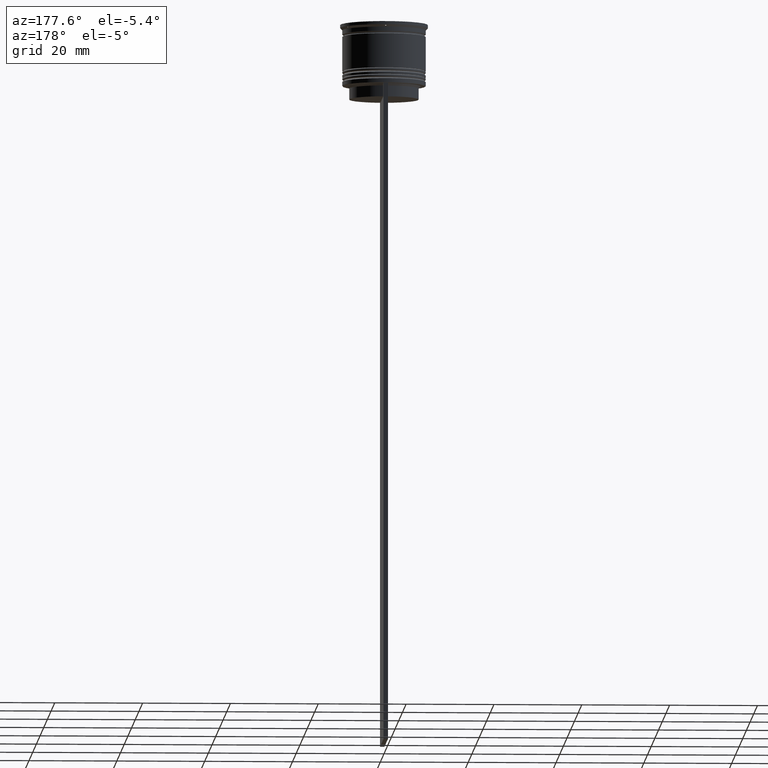
[diagram: clean part render]
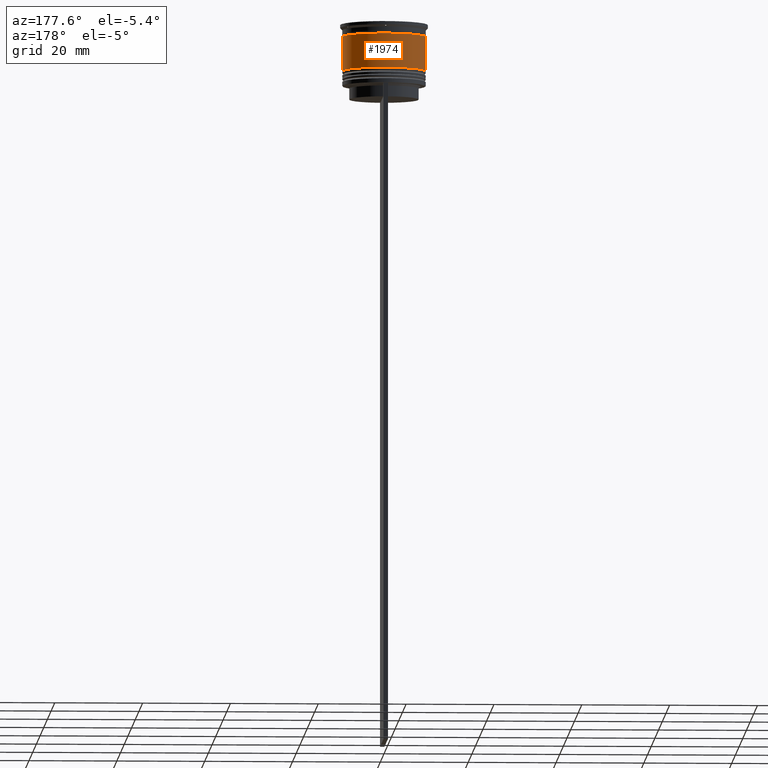
[diagram: same view with one face highlighted and labeled with its STEP entity id]
A machine part, auxiliary view. The second image highlights one B-rep face of the part: STEP entity #1974.
In plain terms, the highlighted cylindrical surface (partial cylindrical patch) has radius 9.5 mm, axis along (-0, -0, 1).
Its self-contained STEP definition (entity closure, byte-faithful):
#97 = AXIS2_PLACEMENT_3D ( 'NONE', #355, #1374, #1405 ) ;
#134 = LINE ( 'NONE', #312, #1275 ) ;
#136 = FACE_OUTER_BOUND ( 'NONE', #2423, .T. ) ;
#298 = CARTESIAN_POINT ( 'NONE',  ( 0.000000000000000000, 0.000000000000000000, -10.50000000000000000 ) ) ;
#312 = CARTESIAN_POINT ( 'NONE',  ( 9.500000000000000000, 0.000000000000000000, 0.000000000000000000 ) ) ;
#355 = CARTESIAN_POINT ( 'NONE',  ( 0.000000000000000000, 0.000000000000000000, 0.000000000000000000 ) ) ;
#469 = CARTESIAN_POINT ( 'NONE',  ( -9.499999999999998224, 1.163414459189985485E-15, -2.700000000000001066 ) ) ;
#548 = ORIENTED_EDGE ( 'NONE', *, *, #2286, .T. ) ;
#578 = CYLINDRICAL_SURFACE ( 'NONE', #97, 9.500000000000000000 ) ;
#649 = LINE ( 'NONE', #2066, #1359 ) ;
#684 = ORIENTED_EDGE ( 'NONE', *, *, #1236, .F. ) ;
#737 = CARTESIAN_POINT ( 'NONE',  ( 9.500000000000001776, 0.000000000000000000, -10.50000000000000000 ) ) ;
#935 = VERTEX_POINT ( 'NONE', #469 ) ;
#949 = DIRECTION ( 'NONE',  ( -0.000000000000000000, -0.000000000000000000, 1.000000000000000000 ) ) ;
#1022 = CARTESIAN_POINT ( 'NONE',  ( 0.000000000000000000, 0.000000000000000000, -2.700000000000001066 ) ) ;
#1049 = DIRECTION ( 'NONE',  ( -0.000000000000000000, -0.000000000000000000, 1.000000000000000000 ) ) ;
#1123 = DIRECTION ( 'NONE',  ( 1.000000000000000000, 0.000000000000000000, 0.000000000000000000 ) ) ;
#1143 = DIRECTION ( 'NONE',  ( -0.000000000000000000, -0.000000000000000000, 1.000000000000000000 ) ) ;
#1236 = EDGE_CURVE ( 'NONE', #1666, #935, #1660, .T. ) ;
#1275 = VECTOR ( 'NONE', #1143, 1000.000000000000000 ) ;
#1359 = VECTOR ( 'NONE', #1049, 1000.000000000000000 ) ;
#1374 = DIRECTION ( 'NONE',  ( -0.000000000000000000, -0.000000000000000000, 1.000000000000000000 ) ) ;
#1405 = DIRECTION ( 'NONE',  ( 1.000000000000000000, 0.000000000000000000, 0.000000000000000000 ) ) ;
#1649 = DIRECTION ( 'NONE',  ( -0.000000000000000000, -0.000000000000000000, 1.000000000000000000 ) ) ;
#1660 = CIRCLE ( 'NONE', #2562, 9.499999999999998224 ) ;
#1666 = VERTEX_POINT ( 'NONE', #2645 ) ;
#1681 = ORIENTED_EDGE ( 'NONE', *, *, #2631, .F. ) ;
#1705 = VERTEX_POINT ( 'NONE', #2426 ) ;
#1883 = ORIENTED_EDGE ( 'NONE', *, *, #2171, .T. ) ;
#1974 = ADVANCED_FACE ( 'NONE', ( #136 ), #578, .T. ) ;
#2019 = DIRECTION ( 'NONE',  ( 1.000000000000000000, 0.000000000000000000, 0.000000000000000000 ) ) ;
#2066 = CARTESIAN_POINT ( 'NONE',  ( -9.500000000000000000, 1.163414459189985485E-15, 0.000000000000000000 ) ) ;
#2124 = CIRCLE ( 'NONE', #2215, 9.500000000000001776 ) ;
#2171 = EDGE_CURVE ( 'NONE', #2183, #1705, #2124, .T. ) ;
#2183 = VERTEX_POINT ( 'NONE', #737 ) ;
#2215 = AXIS2_PLACEMENT_3D ( 'NONE', #298, #949, #1123 ) ;
#2286 = EDGE_CURVE ( 'NONE', #1705, #935, #649, .T. ) ;
#2423 = EDGE_LOOP ( 'NONE', ( #1883, #548, #684, #1681 ) ) ;
#2426 = CARTESIAN_POINT ( 'NONE',  ( -9.500000000000001776, 1.163414459189985682E-15, -10.50000000000000000 ) ) ;
#2562 = AXIS2_PLACEMENT_3D ( 'NONE', #1022, #1649, #2019 ) ;
#2631 = EDGE_CURVE ( 'NONE', #2183, #1666, #134, .T. ) ;
#2645 = CARTESIAN_POINT ( 'NONE',  ( 9.499999999999998224, 0.000000000000000000, -2.700000000000001066 ) ) ;